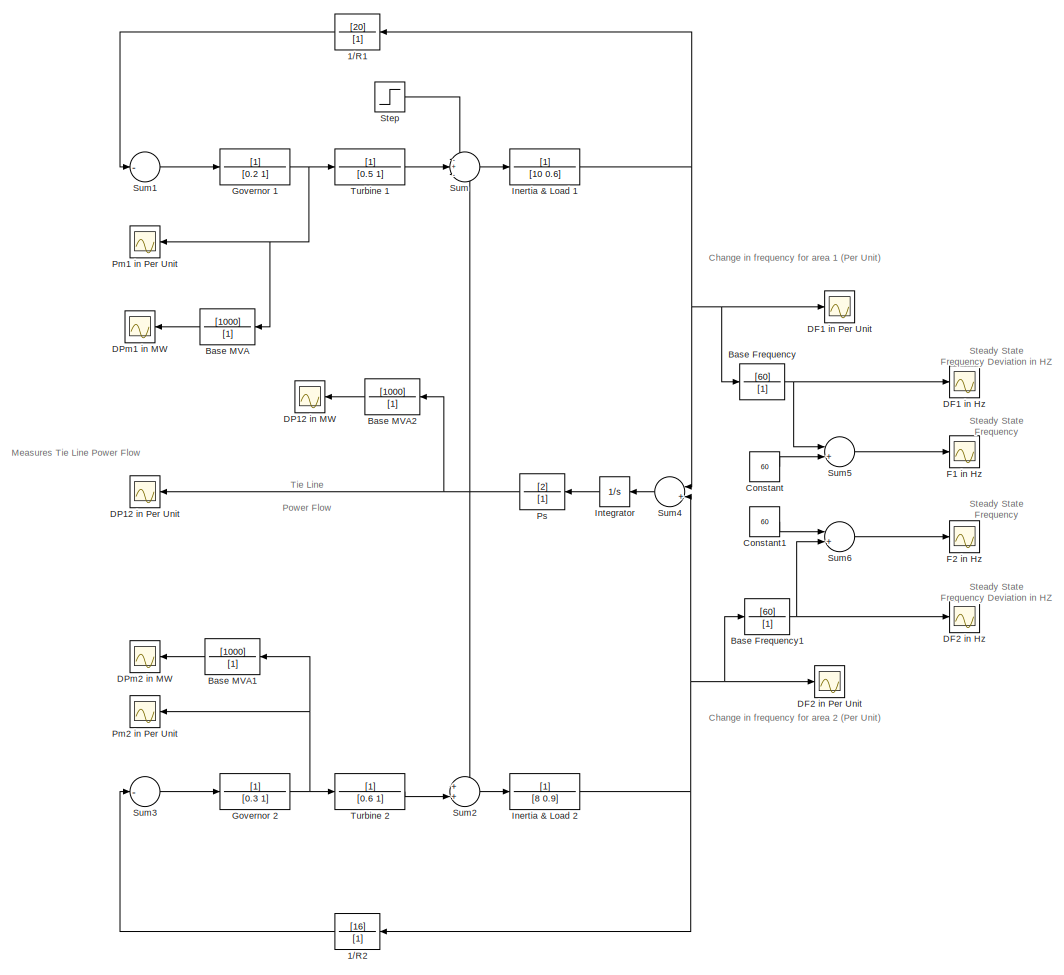
[diagram: root canvas - part 1/2, most of the canvas]
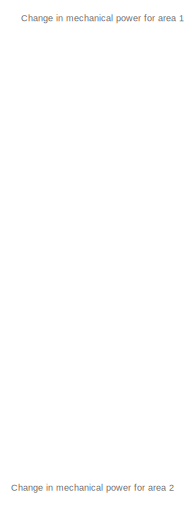
[diagram: root canvas - part 2/2, middle left region]
MODEL slx_4ac7c6b33072
KIND model
CONFIG AbsTol = auto
CONFIG EnableMultiTasking = off
CONFIG FixedStep = auto
CONFIG MaxStep = auto
CONFIG MinStep = auto
CONFIG RelTol = 1e-3
CONFIG SampleTimeConstraint = Unconstrained
CONFIG Solver = VariableStepAuto
CONFIG SolverName = VariableStepAuto
CONFIG StartTime = 0.0
CONFIG StopTime = 50
BLOCK [TransferFcn] 1//R1
  Denominator = [1]
  Numerator = [20]
BLOCK [TransferFcn] 1//R2
  Denominator = [1]
  Numerator = [16]
BLOCK [TransferFcn] Base Frequency
  Denominator = [1]
  Numerator = [60]
BLOCK [TransferFcn] Base Frequency1
  Denominator = [1]
  Numerator = [60]
BLOCK [TransferFcn] Base MVA
  Denominator = [1]
  Numerator = [1000]
BLOCK [TransferFcn] Base MVA1
  Denominator = [1]
  Numerator = [1000]
BLOCK [TransferFcn] Base MVA2
  Denominator = [1]
  Numerator = [1000]
BLOCK [Constant] Constant
  Value = 60
BLOCK [Constant] Constant1
  Value = 60
BLOCK [Scope] DF1 in Hz
  Floating = off
  NumInputPorts = 1
  Ports = [1]
  ScopeSpecificationString = Simulink.scopes.TimeScopeBlockCfg('CurrentConfiguration', extmgr.ConfigurationSet(extmgr.Configuration('Core','General UI',true),extmgr.Configuration('Core','Source UI',true),extmgr.Configuration('Sources','WiredSimulink',true,'DataLoggingVariableName','ScopeData5'),extmgr.Configuration('Visuals','Time Domain',true,'SerializedDisplays',{struct('MinYLimReal','-0.88482','MaxYLimReal','0.09831','YLab...<+1402ch>
BLOCK [Scope] DF1 in Per Unit
  Floating = off
  NumInputPorts = 1
  Ports = [1]
  ScopeSpecificationString = Simulink.scopes.TimeScopeBlockCfg('CurrentConfiguration', extmgr.ConfigurationSet(extmgr.Configuration('Core','General UI',true),extmgr.Configuration('Core','Source UI',true),extmgr.Configuration('Sources','WiredSimulink',true),extmgr.Configuration('Visuals','Time Domain',true,'SerializedDisplays',{struct('MinYLimReal','-0.01475','MaxYLimReal','0.00164','YLabelReal','','MinYLimMag','0.00000','MaxY...<+1698ch>
BLOCK [Scope] DF2 in Hz
  Floating = off
  NumInputPorts = 1
  Ports = [1]
  ScopeSpecificationString = Simulink.scopes.TimeScopeBlockCfg('CurrentConfiguration', extmgr.ConfigurationSet(extmgr.Configuration('Core','General UI',true),extmgr.Configuration('Core','Source UI',true),extmgr.Configuration('Sources','WiredSimulink',true,'DataLoggingVariableName','ScopeData6'),extmgr.Configuration('Visuals','Time Domain',true,'SerializedDisplays',{struct('MinYLimReal','-0.3067','MaxYLimReal','0.03408','YLabe...<+1398ch>
BLOCK [Scope] DF2 in Per Unit
  Floating = off
  NumInputPorts = 1
  Ports = [1]
  ScopeSpecificationString = Simulink.scopes.TimeScopeBlockCfg('CurrentConfiguration', extmgr.ConfigurationSet(extmgr.Configuration('Core','General UI',true),extmgr.Configuration('Core','Source UI',true),extmgr.Configuration('Sources','WiredSimulink',true,'DataLoggingVariableName','ScopeData2'),extmgr.Configuration('Visuals','Time Domain',true,'SerializedDisplays',{struct('MinYLimReal','-0.00562','MaxYLimReal','0.00062','YLab...<+1725ch>
BLOCK [Scope] DP12 in MW
  Floating = off
  NumInputPorts = 1
  Ports = [1]
  ScopeSpecificationString = Simulink.scopes.TimeScopeBlockCfg('CurrentConfiguration', extmgr.ConfigurationSet(extmgr.Configuration('Core','General UI',true),extmgr.Configuration('Core','Source UI',true),extmgr.Configuration('Sources','WiredSimulink',true,'DataLoggingVariableName','ScopeData1'),extmgr.Configuration('Visuals','Time Domain',true,'SerializedDisplays',{struct('MinYLimReal','-95.05893','MaxYLimReal','10.5621','YLa...<+1659ch>
BLOCK [Scope] DP12 in Per Unit
  Floating = off
  NumInputPorts = 1
  Ports = [1]
  ScopeSpecificationString = Simulink.scopes.TimeScopeBlockCfg('CurrentConfiguration', extmgr.ConfigurationSet(extmgr.Configuration('Core','General UI',true),extmgr.Configuration('Core','Source UI',true),extmgr.Configuration('Sources','WiredSimulink',true,'DataLoggingVariableName','ScopeData1'),extmgr.Configuration('Visuals','Time Domain',true,'SerializedDisplays',{struct('MinYLimReal','-0.09506','MaxYLimReal','0.01056','YLab...<+1393ch>
BLOCK [Scope] DPm1 in MW
  Floating = off
  NumInputPorts = 1
  Ports = [1]
  ScopeSpecificationString = Simulink.scopes.TimeScopeBlockCfg('CurrentConfiguration', extmgr.ConfigurationSet(extmgr.Configuration('Core','General UI',true),extmgr.Configuration('Core','Source UI',true),extmgr.Configuration('Sources','WiredSimulink',true,'DataLoggingVariableName','ScopeData10'),extmgr.Configuration('Visuals','Time Domain',true,'SerializedDisplays',{struct('MinYLimReal','-32.25533','MaxYLimReal','290.29793','...<+1720ch>
BLOCK [Scope] DPm2 in MW
  Floating = off
  NumInputPorts = 1
  Ports = [1]
  ScopeSpecificationString = Simulink.scopes.TimeScopeBlockCfg('CurrentConfiguration', extmgr.ConfigurationSet(extmgr.Configuration('Core','General UI',true),extmgr.Configuration('Core','Source UI',true),extmgr.Configuration('Sources','WiredSimulink',true,'DataLoggingVariableName','ScopeData9'),extmgr.Configuration('Visuals','Time Domain',true,'SerializedDisplays',{struct('MinYLimReal','-9.99961','MaxYLimReal','89.99652','YLa...<+1372ch>
BLOCK [Scope] F1 in Hz
  Floating = off
  NumInputPorts = 1
  Ports = [1]
  ScopeSpecificationString = Simulink.scopes.TimeScopeBlockCfg('CurrentConfiguration', extmgr.ConfigurationSet(extmgr.Configuration('Core','General UI',true),extmgr.Configuration('Core','Source UI',true),extmgr.Configuration('Sources','WiredSimulink',true,'DataLoggingVariableName','ScopeData7'),extmgr.Configuration('Visuals','Time Domain',true,'SerializedDisplays',{struct('MinYLimReal','59.11518','MaxYLimReal','60.09831','YLa...<+1398ch>
BLOCK [Scope] F2 in Hz
  Floating = off
  NumInputPorts = 1
  Ports = [1]
  ScopeSpecificationString = Simulink.scopes.TimeScopeBlockCfg('CurrentConfiguration', extmgr.ConfigurationSet(extmgr.Configuration('Core','General UI',true),extmgr.Configuration('Core','Source UI',true),extmgr.Configuration('Sources','WiredSimulink',true,'DataLoggingVariableName','ScopeData8'),extmgr.Configuration('Visuals','Time Domain',true,'SerializedDisplays',{struct('MinYLimReal','59.66251','MaxYLimReal','60.0375','YLab...<+1394ch>
BLOCK [TransferFcn] Governor 1
  Denominator = [0.2 1]
BLOCK [TransferFcn] Governor 2
  Denominator = [0.3 1]
BLOCK [TransferFcn] Inertia & Load 1
  Denominator = [10 0.6]
BLOCK [TransferFcn] Inertia & Load 2
  Denominator = [8 0.9]
BLOCK [Integrator] Integrator
  Ports = [1, 1]
BLOCK [Scope] Pm1 in Per Unit
  Floating = off
  NumInputPorts = 1
  Ports = [1]
  ScopeSpecificationString = Simulink.scopes.TimeScopeBlockCfg('CurrentConfiguration', extmgr.ConfigurationSet(extmgr.Configuration('Core','General UI',true),extmgr.Configuration('Core','Source UI',true),extmgr.Configuration('Sources','WiredSimulink',true,'DataLoggingVariableName','ScopeData3'),extmgr.Configuration('Visuals','Time Domain',true,'SerializedDisplays',{struct('MinYLimReal','-0.03226','MaxYLimReal','0.2903','YLabe...<+1393ch>
BLOCK [Scope] Pm2 in Per Unit
  Floating = off
  NumInputPorts = 1
  Ports = [1]
  ScopeSpecificationString = Simulink.scopes.TimeScopeBlockCfg('CurrentConfiguration', extmgr.ConfigurationSet(extmgr.Configuration('Core','General UI',true),extmgr.Configuration('Core','Source UI',true),extmgr.Configuration('Sources','WiredSimulink',true,'DataLoggingVariableName','ScopeData4'),extmgr.Configuration('Visuals','Time Domain',true,'SerializedDisplays',{struct('MinYLimReal','-0.01','MaxYLimReal','0.09','YLabelReal...<+1351ch>
BLOCK [TransferFcn] Ps
  Denominator = [1]
  Numerator = [2]
BLOCK [Step] Step
  After = 0.1875
  Before = 0.1875
  SampleTime = 0
  Time = 100
BLOCK [Sum] Sum
  Inputs = -+-
  Ports = [3, 1]
BLOCK [Sum] Sum1
  Inputs = -
  Ports = [1, 1]
BLOCK [Sum] Sum2
  Inputs = ++|
  Ports = [2, 1]
BLOCK [Sum] Sum3
  Inputs = -
  Ports = [1, 1]
BLOCK [Sum] Sum4
  Inputs = |+-|
  Ports = [2, 1]
BLOCK [Sum] Sum5
  Inputs = |++|
  Ports = [2, 1]
BLOCK [Sum] Sum6
  Inputs = |++|
  Ports = [2, 1]
BLOCK [TransferFcn] Turbine 1
  Denominator = [0.5 1]
BLOCK [TransferFcn] Turbine 2
  Denominator = [0.6 1]
ANNOTATION (root): Change in mechanical power for area 1
ANNOTATION (root): Change in mechanical power for area 2
ANNOTATION (root): Measures Tie Line Power Flow
ANNOTATION (root): Steady State Frequency
ANNOTATION (root): Steady State Frequency Deviation in HZ
ANNOTATION (root): Change in frequency for area 1 (Per Unit)
ANNOTATION (root): Change in frequency for area 2 (Per Unit)
ANNOTATION (root): Tie Line Power Flow
LINE 1//R1:1 -> Sum1:1
LINE 1//R2:1 -> Sum3:1
NET Base Frequency1:1 -> DF2 in Hz:1, Sum6:2
NET Base Frequency:1 -> DF1 in Hz:1, Sum5:1
LINE Base MVA1:1 -> DPm2 in MW:1
LINE Base MVA2:1 -> DP12 in MW:1
LINE Base MVA:1 -> DPm1 in MW:1
LINE Constant1:1 -> Sum6:1
LINE Constant:1 -> Sum5:2
NET Governor 1:1 -> Base MVA:1, Pm1 in Per Unit:1, Turbine 1:1
NET Governor 2:1 -> Base MVA1:1, Pm2 in Per Unit:1, Turbine 2:1
NET Inertia & Load 1:1 -> 1//R1:1, Base Frequency:1, DF1 in Per Unit:1, Sum4:1
NET Inertia & Load 2:1 -> 1//R2:1, Base Frequency1:1, DF2 in Per Unit:1, Sum4:2
LINE Integrator:1 -> Ps:1
NET Ps:1 -> Base MVA2:1, DP12 in Per Unit:1, Sum2:1, Sum:3
LINE Step:1 -> Sum:1
LINE Sum1:1 -> Governor 1:1
LINE Sum2:1 -> Inertia & Load 2:1
LINE Sum3:1 -> Governor 2:1
LINE Sum4:1 -> Integrator:1
LINE Sum5:1 -> F1 in Hz:1
LINE Sum6:1 -> F2 in Hz:1
LINE Sum:1 -> Inertia & Load 1:1
LINE Turbine 1:1 -> Sum:2
LINE Turbine 2:1 -> Sum2:2
note: NET lines group one-source signal fan-out (src -> all destinations, sorted); 1:1 wires keep LINE
